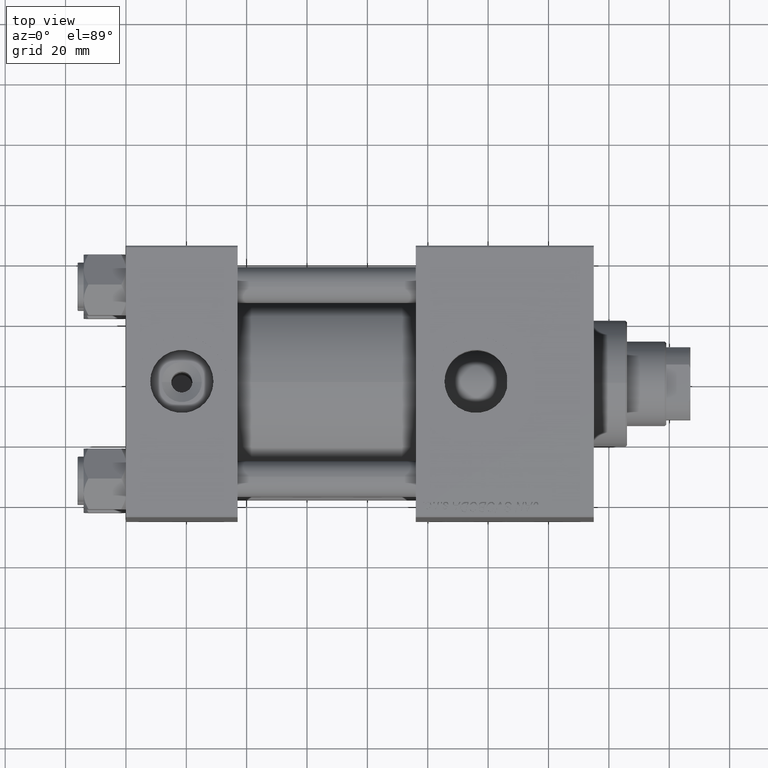
[diagram: clean part render]
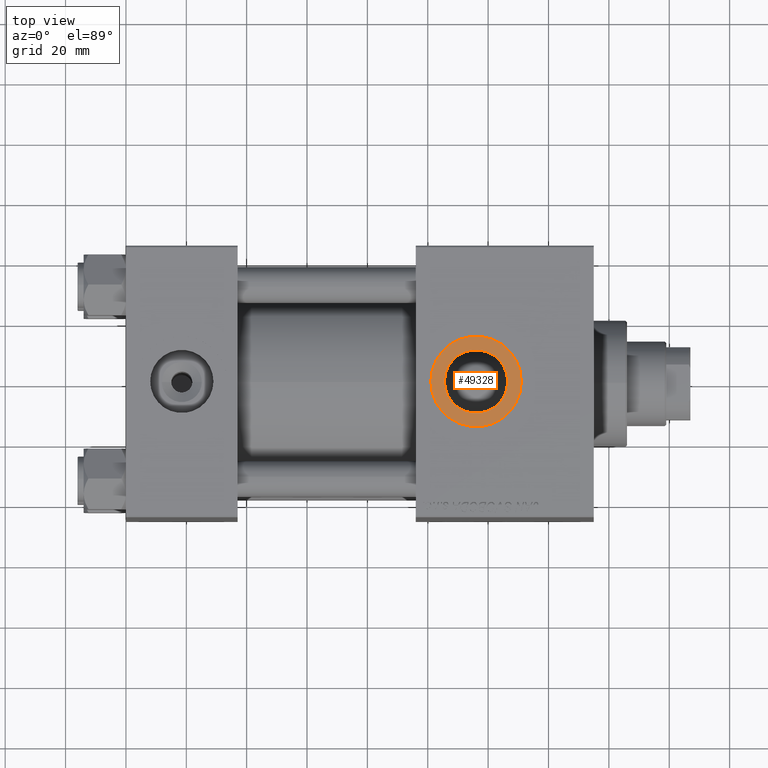
[diagram: same view with one face highlighted and labeled with its STEP entity id]
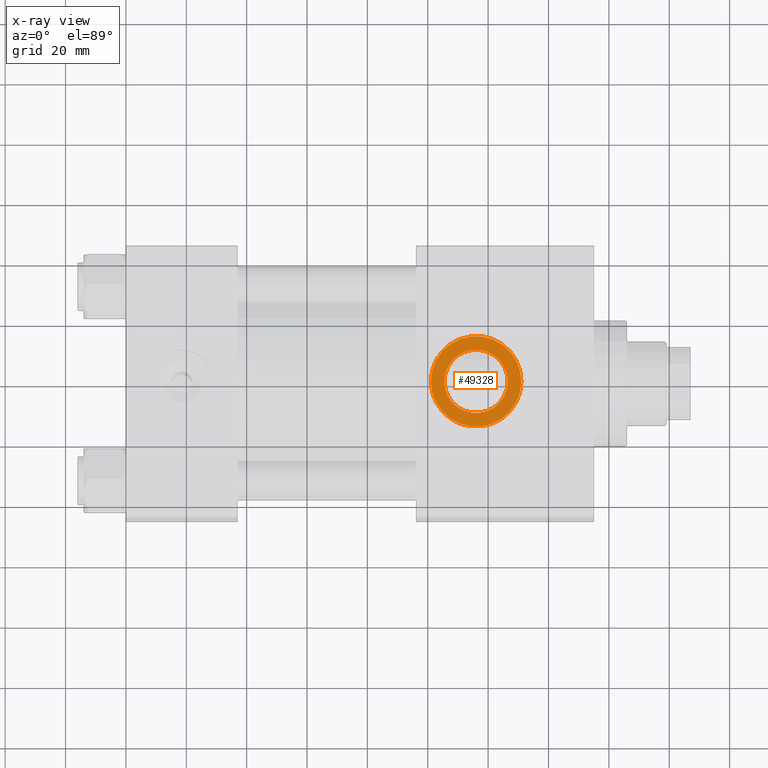
[diagram: x-ray of the same camera — body ghosted, the highlighted face saturated]
A machine part, top view. The second image highlights one B-rep face of the part: STEP entity #49328.
The next image is the same camera in x-ray: the body ghosted, the highlighted face saturated — about 0% of this face is hidden behind the body in this view.
In plain terms, the highlighted planar face has unit normal (0, 0, 1).
Its self-contained STEP definition (entity closure, byte-faithful):
#5 = ORIENTED_EDGE ( 'NONE', *, *, #33039, .T. ) ;
#107 = ORIENTED_EDGE ( 'NONE', *, *, #31176, .T. ) ;
#198 = CARTESIAN_POINT ( 'NONE',  ( 131.0000000000000000, -6.938893903907227589E-15, 44.79999999999999005 ) ) ;
#1388 = CARTESIAN_POINT ( 'NONE',  ( 126.4800000000000040, -5.655464058400802100E-15, 44.79999999999999005 ) ) ;
#1819 = DIRECTION ( 'NONE',  ( 1.000000000000000000, 0.000000000000000000, -0.000000000000000000 ) ) ;
#3767 = AXIS2_PLACEMENT_3D ( 'NONE', #28237, #8146, #25050 ) ;
#5808 = FACE_BOUND ( 'NONE', #9911, .T. ) ;
#6624 = CARTESIAN_POINT ( 'NONE',  ( 105.5199999999999960, -6.938893903907227589E-15, 44.79999999999999005 ) ) ;
#7488 = DIRECTION ( 'NONE',  ( 1.000000000000000000, 0.000000000000000000, 0.000000000000000000 ) ) ;
#8146 = DIRECTION ( 'NONE',  ( -0.000000000000000000, -0.000000000000000000, -1.000000000000000000 ) ) ;
#8348 = VERTEX_POINT ( 'NONE', #198 ) ;
#8721 = CIRCLE ( 'NONE', #41663, 10.48000000000000398 ) ;
#9547 = ORIENTED_EDGE ( 'NONE', *, *, #18659, .T. ) ;
#9911 = EDGE_LOOP ( 'NONE', ( #107, #43064 ) ) ;
#11394 = CARTESIAN_POINT ( 'NONE',  ( 116.0000000000000000, -6.938893903907227589E-15, 44.79999999999999005 ) ) ;
#14701 = AXIS2_PLACEMENT_3D ( 'NONE', #35497, #32049, #7488 ) ;
#14780 = DIRECTION ( 'NONE',  ( 0.000000000000000000, 0.000000000000000000, 1.000000000000000000 ) ) ;
#17949 = CARTESIAN_POINT ( 'NONE',  ( 116.0000000000000000, -6.938893903907227589E-15, 44.79999999999999005 ) ) ;
#18292 = DIRECTION ( 'NONE',  ( 1.000000000000000000, 0.000000000000000000, 0.000000000000000000 ) ) ;
#18659 = EDGE_CURVE ( 'NONE', #8348, #39650, #24721, .T. ) ;
#21933 = DIRECTION ( 'NONE',  ( 0.000000000000000000, 0.000000000000000000, 1.000000000000000000 ) ) ;
#22470 = CARTESIAN_POINT ( 'NONE',  ( 116.0000000000000000, -6.938893903907227589E-15, 44.79999999999999005 ) ) ;
#22527 = DIRECTION ( 'NONE',  ( -0.000000000000000000, -0.000000000000000000, -1.000000000000000000 ) ) ;
#23052 = CARTESIAN_POINT ( 'NONE',  ( 100.9999999999999858, -5.101923705186196422E-15, 44.79999999999999005 ) ) ;
#24534 = EDGE_LOOP ( 'NONE', ( #9547, #5 ) ) ;
#24721 = CIRCLE ( 'NONE', #46677, 15.00000000000000000 ) ;
#25050 = DIRECTION ( 'NONE',  ( 1.000000000000000000, 0.000000000000000000, 0.000000000000000000 ) ) ;
#26727 = VERTEX_POINT ( 'NONE', #6624 ) ;
#28237 = CARTESIAN_POINT ( 'NONE',  ( 116.0000000000000000, -6.938893903907227589E-15, 44.79999999999999005 ) ) ;
#31176 = EDGE_CURVE ( 'NONE', #26727, #42280, #8721, .T. ) ;
#32049 = DIRECTION ( 'NONE',  ( 0.000000000000000000, 0.000000000000000000, 1.000000000000000000 ) ) ;
#33039 = EDGE_CURVE ( 'NONE', #39650, #8348, #46793, .T. ) ;
#33907 = EDGE_CURVE ( 'NONE', #42280, #26727, #41736, .T. ) ;
#35497 = CARTESIAN_POINT ( 'NONE',  ( 116.0000000000000000, -6.938893903907227589E-15, 44.79999999999999005 ) ) ;
#38735 = AXIS2_PLACEMENT_3D ( 'NONE', #17949, #21933, #1819 ) ;
#38823 = FACE_OUTER_BOUND ( 'NONE', #24534, .T. ) ;
#39650 = VERTEX_POINT ( 'NONE', #23052 ) ;
#41663 = AXIS2_PLACEMENT_3D ( 'NONE', #11394, #22527, #18292 ) ;
#41736 = CIRCLE ( 'NONE', #3767, 10.48000000000000398 ) ;
#42026 = PLANE ( 'NONE',  #38735 ) ;
#42280 = VERTEX_POINT ( 'NONE', #1388 ) ;
#43064 = ORIENTED_EDGE ( 'NONE', *, *, #33907, .T. ) ;
#46677 = AXIS2_PLACEMENT_3D ( 'NONE', #22470, #14780, #50748 ) ;
#46793 = CIRCLE ( 'NONE', #14701, 15.00000000000000000 ) ;
#49328 = ADVANCED_FACE ( 'NONE', ( #5808, #38823 ), #42026, .T. ) ;
#50748 = DIRECTION ( 'NONE',  ( 1.000000000000000000, 0.000000000000000000, 0.000000000000000000 ) ) ;